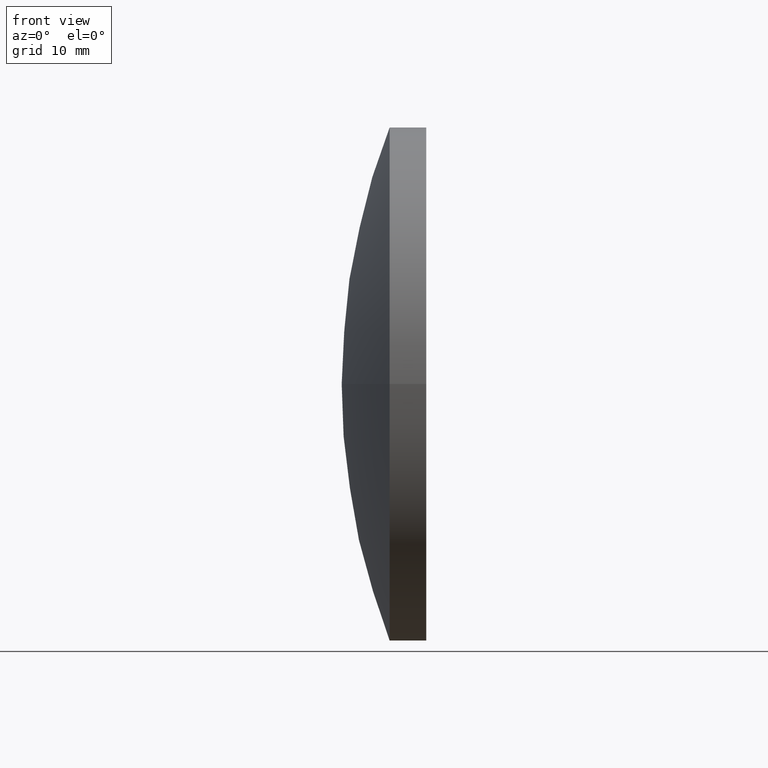
[diagram: clean part render]
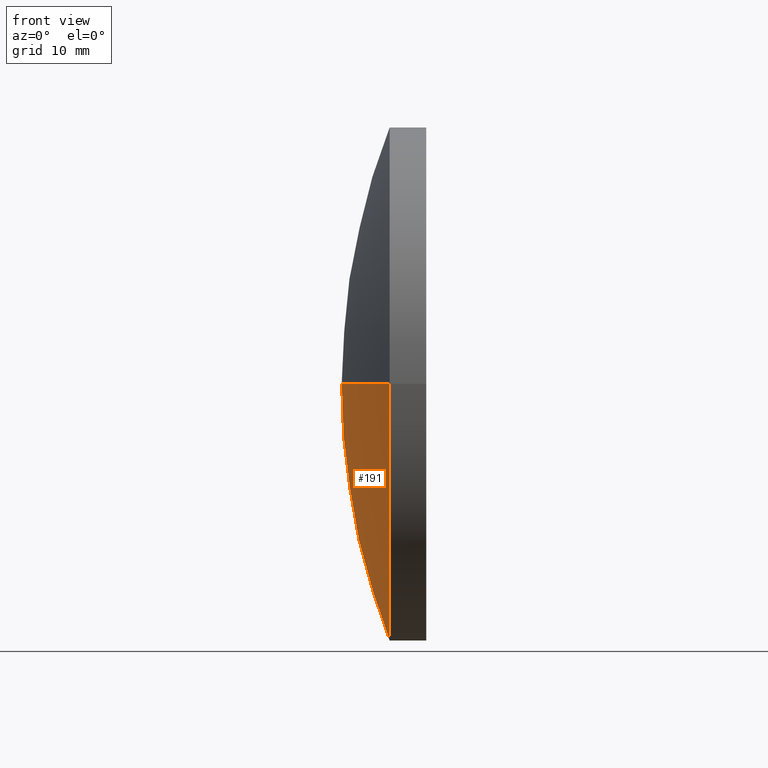
[diagram: same view with one face highlighted and labeled with its STEP entity id]
A machine part, front view. The second image highlights one B-rep face of the part: STEP entity #191.
In plain terms, the highlighted spherical surface has radius 69.4 mm.
Its self-contained STEP definition (entity closure, byte-faithful):
#6 = CARTESIAN_POINT ( 'NONE',  ( 314.6821311214902200, 130.4336809418806800, 0.0000000000000000000 ) ) ;
#7 = VERTEX_POINT ( 'NONE', #156 ) ;
#19 = CARTESIAN_POINT ( 'NONE',  ( 249.9414175016976000, 105.4336809418807400, -3.061616997868370400E-015 ) ) ;
#25 = DIRECTION ( 'NONE',  ( -0.0000000000000000000, 0.0000000000000000000, 1.000000000000000000 ) ) ;
#26 = AXIS2_PLACEMENT_3D ( 'NONE', #148, #71, #101 ) ;
#28 = EDGE_CURVE ( 'NONE', #149, #92, #36, .T. ) ;
#33 = SPHERICAL_SURFACE ( 'NONE', #167, 69.40000000000002000 ) ;
#36 = CIRCLE ( 'NONE', #133, 69.40000000000002000 ) ;
#38 = EDGE_CURVE ( 'NONE', #7, #92, #131, .T. ) ;
#41 = CARTESIAN_POINT ( 'NONE',  ( 245.2821311214902100, 130.4336809418806200, 0.0000000000000000000 ) ) ;
#43 = CIRCLE ( 'NONE', #26, 24.99999999999992500 ) ;
#58 = CARTESIAN_POINT ( 'NONE',  ( 314.6821311214902200, 130.4336809418806800, 0.0000000000000000000 ) ) ;
#71 = DIRECTION ( 'NONE',  ( -1.000000000000000000, -6.937607244762875000E-016, -0.0000000000000000000 ) ) ;
#75 = FACE_OUTER_BOUND ( 'NONE', #125, .T. ) ;
#87 = DIRECTION ( 'NONE',  ( -8.496118506040342700E-032, 1.224646799147353200E-016, -1.000000000000000000 ) ) ;
#92 = VERTEX_POINT ( 'NONE', #41 ) ;
#93 = AXIS2_PLACEMENT_3D ( 'NONE', #58, #25, #185 ) ;
#100 = EDGE_CURVE ( 'NONE', #7, #149, #43, .T. ) ;
#101 = DIRECTION ( 'NONE',  ( 1.110223024625159900E-015, -1.000000000000000000, 0.0000000000000000000 ) ) ;
#114 = ORIENTED_EDGE ( 'NONE', *, *, #38, .F. ) ;
#125 = EDGE_LOOP ( 'NONE', ( #155, #151, #114 ) ) ;
#126 = DIRECTION ( 'NONE',  ( -7.998724961276342300E-016, 1.000000000000000000, 0.0000000000000000000 ) ) ;
#131 = CIRCLE ( 'NONE', #93, 69.40000000000002000 ) ;
#133 = AXIS2_PLACEMENT_3D ( 'NONE', #6, #87, #177 ) ;
#141 = DIRECTION ( 'NONE',  ( -0.0000000000000000000, 0.0000000000000000000, -1.000000000000000000 ) ) ;
#148 = CARTESIAN_POINT ( 'NONE',  ( 249.9414175016976000, 130.4336809418806500, 0.0000000000000000000 ) ) ;
#149 = VERTEX_POINT ( 'NONE', #19 ) ;
#151 = ORIENTED_EDGE ( 'NONE', *, *, #28, .T. ) ;
#155 = ORIENTED_EDGE ( 'NONE', *, *, #100, .T. ) ;
#156 = CARTESIAN_POINT ( 'NONE',  ( 249.9414175016975700, 155.4336809418805700, 0.0000000000000000000 ) ) ;
#167 = AXIS2_PLACEMENT_3D ( 'NONE', #171, #141, #126 ) ;
#171 = CARTESIAN_POINT ( 'NONE',  ( 314.6821311214902200, 130.4336809418806800, 0.0000000000000000000 ) ) ;
#177 = DIRECTION ( 'NONE',  ( 0.0000000000000000000, 1.000000000000000000, 1.224646799147353200E-016 ) ) ;
#185 = DIRECTION ( 'NONE',  ( 1.000000000000000000, 0.0000000000000000000, 0.0000000000000000000 ) ) ;
#191 = ADVANCED_FACE ( 'NONE', ( #75 ), #33, .T. ) ;